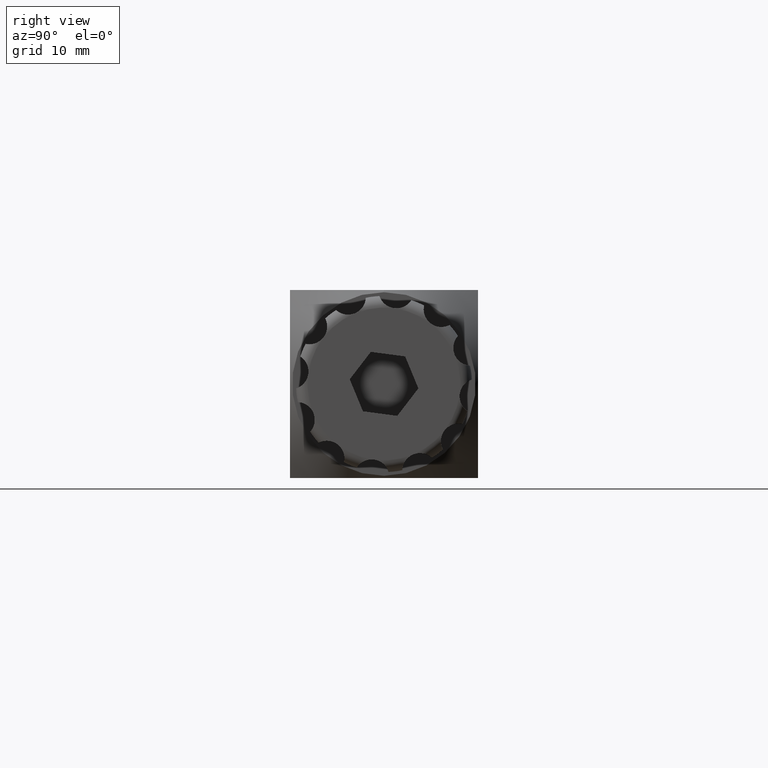
[diagram: clean part render]
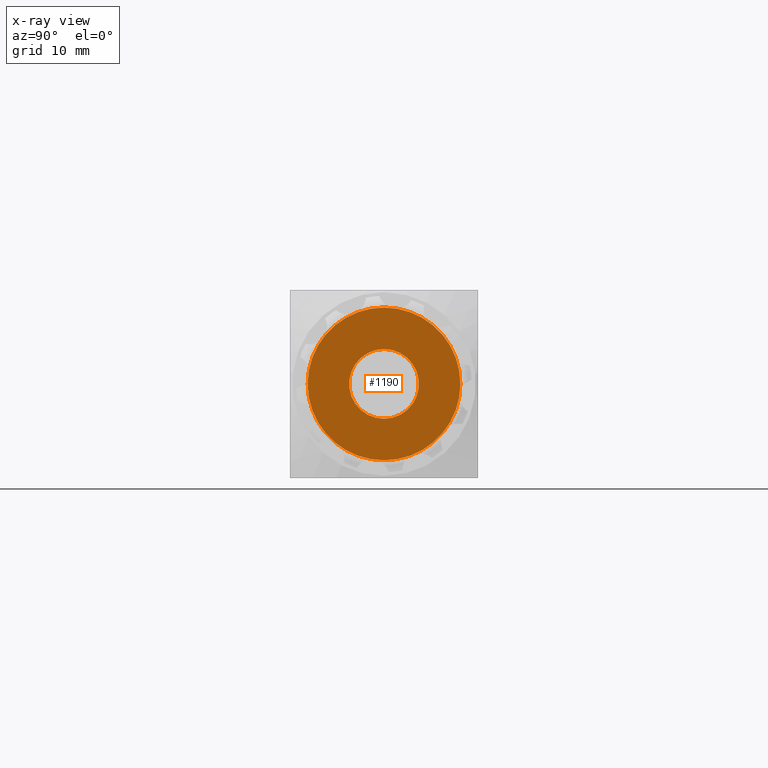
[diagram: x-ray — body ghosted, one internal face saturated and labeled with its STEP entity id]
A machine part, right view, then the same camera in x-ray: the body is ghosted and one INTERNAL B-rep face — a face not visible from any outside direction — is saturated and labeled: STEP entity #1190.
In plain terms, the highlighted planar face has unit normal (-1, -0, -0).
Its self-contained STEP definition (entity closure, byte-faithful):
#58 = FACE_BOUND ( 'NONE', #5365, .T. ) ;
#69 = AXIS2_PLACEMENT_3D ( 'NONE', #92, #629, #5557 ) ;
#74 = CARTESIAN_POINT ( 'NONE',  ( -21.00000000000000400, 5.605808806874574600E-015, 2.970155112205962400 ) ) ;
#92 = CARTESIAN_POINT ( 'NONE',  ( -21.00000000000000400, 0.0000000000000000000, 0.0000000000000000000 ) ) ;
#93 = DIRECTION ( 'NONE',  ( 0.0000000000000000000, 1.887379141862758600E-015, 1.000000000000000000 ) ) ;
#101 = AXIS2_PLACEMENT_3D ( 'NONE', #4347, #2493, #3873 ) ;
#124 = FACE_OUTER_BOUND ( 'NONE', #3116, .T. ) ;
#175 = DIRECTION ( 'NONE',  ( 0.0000000000000000000, 1.887379141862758600E-015, 1.000000000000000000 ) ) ;
#263 = CARTESIAN_POINT ( 'NONE',  ( -21.00000000000000400, 0.0000000000000000000, 0.0000000000000000000 ) ) ;
#267 = DIRECTION ( 'NONE',  ( 0.0000000000000000000, 1.887379141862758600E-015, 1.000000000000000000 ) ) ;
#362 = EDGE_CURVE ( 'NONE', #4632, #2227, #4204, .T. ) ;
#369 = EDGE_CURVE ( 'NONE', #2038, #5420, #1502, .T. ) ;
#371 = ORIENTED_EDGE ( 'NONE', *, *, #4570, .F. ) ;
#397 = VERTEX_POINT ( 'NONE', #2016 ) ;
#449 = EDGE_CURVE ( 'NONE', #3986, #4632, #2786, .T. ) ;
#475 = VERTEX_POINT ( 'NONE', #5678 ) ;
#572 = CARTESIAN_POINT ( 'NONE',  ( -20.99999999999999600, 6.500000000000009800, 1.084202172485503600E-014 ) ) ;
#629 = DIRECTION ( 'NONE',  ( -1.000000000000000000, -2.958228394578804800E-031, 9.860761315262730800E-032 ) ) ;
#930 = ORIENTED_EDGE ( 'NONE', *, *, #2813, .T. ) ;
#1014 = EDGE_CURVE ( 'NONE', #4392, #2038, #3403, .T. ) ;
#1017 = CARTESIAN_POINT ( 'NONE',  ( -21.00000000000000400, -3.250000000000028400, 5.629165124598851700 ) ) ;
#1039 = DIRECTION ( 'NONE',  ( 0.0000000000000000000, 1.887379141862758600E-015, 1.000000000000000000 ) ) ;
#1059 = DIRECTION ( 'NONE',  ( -1.000000000000000000, -2.958228394578804800E-031, 9.860761315262730800E-032 ) ) ;
#1061 = AXIS2_PLACEMENT_3D ( 'NONE', #2437, #2396, #5614 ) ;
#1190 = ADVANCED_FACE ( 'NONE', ( #124, #58 ), #2507, .F. ) ;
#1232 = VERTEX_POINT ( 'NONE', #5645 ) ;
#1256 = AXIS2_PLACEMENT_3D ( 'NONE', #2126, #2513, #4299 ) ;
#1342 = AXIS2_PLACEMENT_3D ( 'NONE', #1975, #2832, #93 ) ;
#1361 = ORIENTED_EDGE ( 'NONE', *, *, #369, .F. ) ;
#1362 = ORIENTED_EDGE ( 'NONE', *, *, #3997, .F. ) ;
#1502 = CIRCLE ( 'NONE', #1256, 6.500000000000012400 ) ;
#1588 = CARTESIAN_POINT ( 'NONE',  ( -20.99999999999999600, 6.499999999999998200, -2.168404344971016000E-015 ) ) ;
#1606 = CIRCLE ( 'NONE', #3773, 6.500000000000012400 ) ;
#1652 = AXIS2_PLACEMENT_3D ( 'NONE', #5569, #5548, #5139 ) ;
#1718 = EDGE_CURVE ( 'NONE', #4104, #397, #2415, .T. ) ;
#1759 = VERTEX_POINT ( 'NONE', #572 ) ;
#1975 = CARTESIAN_POINT ( 'NONE',  ( -21.00000000000000400, 0.0000000000000000000, 0.0000000000000000000 ) ) ;
#2015 = DIRECTION ( 'NONE',  ( 0.0000000000000000000, 1.887379141862758600E-015, 1.000000000000000000 ) ) ;
#2016 = CARTESIAN_POINT ( 'NONE',  ( -21.00000000000000400, -5.242069711761156900E-015, -2.970155112205962400 ) ) ;
#2038 = VERTEX_POINT ( 'NONE', #3097 ) ;
#2096 = EDGE_CURVE ( 'NONE', #1232, #475, #4687, .T. ) ;
#2121 = ORIENTED_EDGE ( 'NONE', *, *, #1014, .F. ) ;
#2126 = CARTESIAN_POINT ( 'NONE',  ( -21.00000000000000400, 0.0000000000000000000, 0.0000000000000000000 ) ) ;
#2227 = VERTEX_POINT ( 'NONE', #1017 ) ;
#2278 = AXIS2_PLACEMENT_3D ( 'NONE', #5815, #4901, #267 ) ;
#2294 = EDGE_CURVE ( 'NONE', #4362, #1759, #5842, .T. ) ;
#2295 = EDGE_CURVE ( 'NONE', #2227, #1232, #3549, .T. ) ;
#2315 = AXIS2_PLACEMENT_3D ( 'NONE', #3474, #5735, #3427 ) ;
#2347 = CARTESIAN_POINT ( 'NONE',  ( -20.99999999999999600, 5.629165124598898700, -3.249999999999932900 ) ) ;
#2390 = CARTESIAN_POINT ( 'NONE',  ( -21.00000000000000400, -6.500000000000016900, -5.334274688628682400E-014 ) ) ;
#2396 = DIRECTION ( 'NONE',  ( -1.000000000000000000, -2.958228394578804800E-031, 9.860761315262730800E-032 ) ) ;
#2400 = CARTESIAN_POINT ( 'NONE',  ( -21.00000000000000400, 0.0000000000000000000, 0.0000000000000000000 ) ) ;
#2403 = AXIS2_PLACEMENT_3D ( 'NONE', #5152, #1059, #2494 ) ;
#2409 = ORIENTED_EDGE ( 'NONE', *, *, #2294, .F. ) ;
#2415 = CIRCLE ( 'NONE', #2403, 2.970155112205962400 ) ;
#2437 = CARTESIAN_POINT ( 'NONE',  ( -21.00000000000000400, 0.0000000000000000000, 0.0000000000000000000 ) ) ;
#2484 = DIRECTION ( 'NONE',  ( -1.000000000000000000, -2.958228394578809200E-031, -1.479114197289397800E-031 ) ) ;
#2493 = DIRECTION ( 'NONE',  ( -1.000000000000000000, -2.958228394578804800E-031, 9.860761315262730800E-032 ) ) ;
#2494 = DIRECTION ( 'NONE',  ( 0.0000000000000000000, 1.887379141862758600E-015, 1.000000000000000000 ) ) ;
#2507 = PLANE ( 'NONE',  #2862 ) ;
#2513 = DIRECTION ( 'NONE',  ( -1.000000000000000000, -2.958228394578804800E-031, 9.860761315262730800E-032 ) ) ;
#2563 = ORIENTED_EDGE ( 'NONE', *, *, #4221, .F. ) ;
#2674 = CIRCLE ( 'NONE', #2315, 6.500000000000012400 ) ;
#2715 = CARTESIAN_POINT ( 'NONE',  ( -21.00000000000000400, -5.629165124598844500, -3.250000000000077700 ) ) ;
#2786 = CIRCLE ( 'NONE', #101, 6.500000000000012400 ) ;
#2813 = EDGE_CURVE ( 'NONE', #397, #4104, #2897, .T. ) ;
#2832 = DIRECTION ( 'NONE',  ( -1.000000000000000000, -2.958228394578804800E-031, 9.860761315262730800E-032 ) ) ;
#2862 = AXIS2_PLACEMENT_3D ( 'NONE', #1588, #2484, #5667 ) ;
#2897 = CIRCLE ( 'NONE', #4131, 2.970155112205962400 ) ;
#2945 = CARTESIAN_POINT ( 'NONE',  ( -21.00000000000000400, -5.629165124598878300, 3.249999999999968000 ) ) ;
#3042 = ORIENTED_EDGE ( 'NONE', *, *, #362, .F. ) ;
#3065 = CARTESIAN_POINT ( 'NONE',  ( -20.99999999999999600, 7.155734338404330500E-014, -6.500000000000021300 ) ) ;
#3097 = CARTESIAN_POINT ( 'NONE',  ( -21.00000000000000400, 3.250000000000062600, -5.629165124598825900 ) ) ;
#3109 = CIRCLE ( 'NONE', #2278, 6.500000000000012400 ) ;
#3116 = EDGE_LOOP ( 'NONE', ( #1362, #2409, #371, #5834, #5398, #3042, #4000, #2563, #4878, #3313, #1361, #2121 ) ) ;
#3145 = CARTESIAN_POINT ( 'NONE',  ( -21.00000000000000400, 0.0000000000000000000, 0.0000000000000000000 ) ) ;
#3149 = CARTESIAN_POINT ( 'NONE',  ( -21.00000000000000400, 5.629165124598863200, 3.250000000000023100 ) ) ;
#3169 = CARTESIAN_POINT ( 'NONE',  ( -21.00000000000000400, -3.249999999999963100, -5.629165124598909400 ) ) ;
#3187 = AXIS2_PLACEMENT_3D ( 'NONE', #5720, #4798, #2015 ) ;
#3192 = VERTEX_POINT ( 'NONE', #2715 ) ;
#3313 = ORIENTED_EDGE ( 'NONE', *, *, #3905, .F. ) ;
#3315 = AXIS2_PLACEMENT_3D ( 'NONE', #3145, #3629, #4451 ) ;
#3403 = CIRCLE ( 'NONE', #1342, 6.500000000000012400 ) ;
#3427 = DIRECTION ( 'NONE',  ( 0.0000000000000000000, 1.887379141862758600E-015, 1.000000000000000000 ) ) ;
#3474 = CARTESIAN_POINT ( 'NONE',  ( -21.00000000000000400, 0.0000000000000000000, 0.0000000000000000000 ) ) ;
#3549 = CIRCLE ( 'NONE', #69, 6.500000000000012400 ) ;
#3629 = DIRECTION ( 'NONE',  ( -1.000000000000000000, -2.958228394578804800E-031, 9.860761315262730800E-032 ) ) ;
#3758 = DIRECTION ( 'NONE',  ( -1.000000000000000000, -2.958228394578804800E-031, 9.860761315262730800E-032 ) ) ;
#3773 = AXIS2_PLACEMENT_3D ( 'NONE', #4975, #4444, #4910 ) ;
#3873 = DIRECTION ( 'NONE',  ( 0.0000000000000000000, 1.887379141862758600E-015, 1.000000000000000000 ) ) ;
#3905 = EDGE_CURVE ( 'NONE', #5420, #5471, #1606, .T. ) ;
#3986 = VERTEX_POINT ( 'NONE', #2390 ) ;
#3997 = EDGE_CURVE ( 'NONE', #1759, #4392, #5317, .T. ) ;
#4000 = ORIENTED_EDGE ( 'NONE', *, *, #449, .F. ) ;
#4104 = VERTEX_POINT ( 'NONE', #74 ) ;
#4131 = AXIS2_PLACEMENT_3D ( 'NONE', #263, #4764, #175 ) ;
#4204 = CIRCLE ( 'NONE', #5853, 6.500000000000012400 ) ;
#4221 = EDGE_CURVE ( 'NONE', #3192, #3986, #3109, .T. ) ;
#4299 = DIRECTION ( 'NONE',  ( 0.0000000000000000000, 1.887379141862758600E-015, 1.000000000000000000 ) ) ;
#4347 = CARTESIAN_POINT ( 'NONE',  ( -21.00000000000000400, 0.0000000000000000000, 0.0000000000000000000 ) ) ;
#4362 = VERTEX_POINT ( 'NONE', #3149 ) ;
#4392 = VERTEX_POINT ( 'NONE', #2347 ) ;
#4444 = DIRECTION ( 'NONE',  ( -1.000000000000000000, -2.958228394578804800E-031, 9.860761315262730800E-032 ) ) ;
#4451 = DIRECTION ( 'NONE',  ( 0.0000000000000000000, 1.887379141862758600E-015, 1.000000000000000000 ) ) ;
#4570 = EDGE_CURVE ( 'NONE', #475, #4362, #4896, .T. ) ;
#4632 = VERTEX_POINT ( 'NONE', #2945 ) ;
#4687 = CIRCLE ( 'NONE', #3315, 6.500000000000012400 ) ;
#4764 = DIRECTION ( 'NONE',  ( -1.000000000000000000, -2.958228394578804800E-031, 9.860761315262730800E-032 ) ) ;
#4798 = DIRECTION ( 'NONE',  ( -1.000000000000000000, -2.958228394578804800E-031, 9.860761315262730800E-032 ) ) ;
#4878 = ORIENTED_EDGE ( 'NONE', *, *, #5875, .F. ) ;
#4896 = CIRCLE ( 'NONE', #3187, 6.500000000000012400 ) ;
#4901 = DIRECTION ( 'NONE',  ( -1.000000000000000000, -2.958228394578804800E-031, 9.860761315262730800E-032 ) ) ;
#4910 = DIRECTION ( 'NONE',  ( 0.0000000000000000000, 1.887379141862758600E-015, 1.000000000000000000 ) ) ;
#4975 = CARTESIAN_POINT ( 'NONE',  ( -21.00000000000000400, 0.0000000000000000000, 0.0000000000000000000 ) ) ;
#5139 = DIRECTION ( 'NONE',  ( 0.0000000000000000000, 1.887379141862758600E-015, 1.000000000000000000 ) ) ;
#5152 = CARTESIAN_POINT ( 'NONE',  ( -21.00000000000000400, 0.0000000000000000000, 0.0000000000000000000 ) ) ;
#5317 = CIRCLE ( 'NONE', #1652, 6.500000000000012400 ) ;
#5365 = EDGE_LOOP ( 'NONE', ( #5510, #930 ) ) ;
#5398 = ORIENTED_EDGE ( 'NONE', *, *, #2295, .F. ) ;
#5420 = VERTEX_POINT ( 'NONE', #3065 ) ;
#5471 = VERTEX_POINT ( 'NONE', #3169 ) ;
#5510 = ORIENTED_EDGE ( 'NONE', *, *, #1718, .T. ) ;
#5548 = DIRECTION ( 'NONE',  ( -1.000000000000000000, -2.958228394578804800E-031, 9.860761315262730800E-032 ) ) ;
#5557 = DIRECTION ( 'NONE',  ( 0.0000000000000000000, 1.887379141862758600E-015, 1.000000000000000000 ) ) ;
#5569 = CARTESIAN_POINT ( 'NONE',  ( -21.00000000000000400, 0.0000000000000000000, 0.0000000000000000000 ) ) ;
#5614 = DIRECTION ( 'NONE',  ( 0.0000000000000000000, 1.887379141862758600E-015, 1.000000000000000000 ) ) ;
#5645 = CARTESIAN_POINT ( 'NONE',  ( -21.00000000000000400, -1.214306433183763900E-014, 6.500000000000019500 ) ) ;
#5667 = DIRECTION ( 'NONE',  ( -1.479114197289403500E-031, 1.887379141862758600E-015, 1.000000000000000000 ) ) ;
#5678 = CARTESIAN_POINT ( 'NONE',  ( -20.99999999999999600, 3.250005428527566100, 5.629161990452160100 ) ) ;
#5720 = CARTESIAN_POINT ( 'NONE',  ( -21.00000000000000400, 0.0000000000000000000, 0.0000000000000000000 ) ) ;
#5735 = DIRECTION ( 'NONE',  ( -1.000000000000000000, -2.958228394578804800E-031, 9.860761315262730800E-032 ) ) ;
#5815 = CARTESIAN_POINT ( 'NONE',  ( -21.00000000000000400, 0.0000000000000000000, 0.0000000000000000000 ) ) ;
#5834 = ORIENTED_EDGE ( 'NONE', *, *, #2096, .F. ) ;
#5842 = CIRCLE ( 'NONE', #1061, 6.500000000000012400 ) ;
#5853 = AXIS2_PLACEMENT_3D ( 'NONE', #2400, #3758, #1039 ) ;
#5875 = EDGE_CURVE ( 'NONE', #5471, #3192, #2674, .T. ) ;